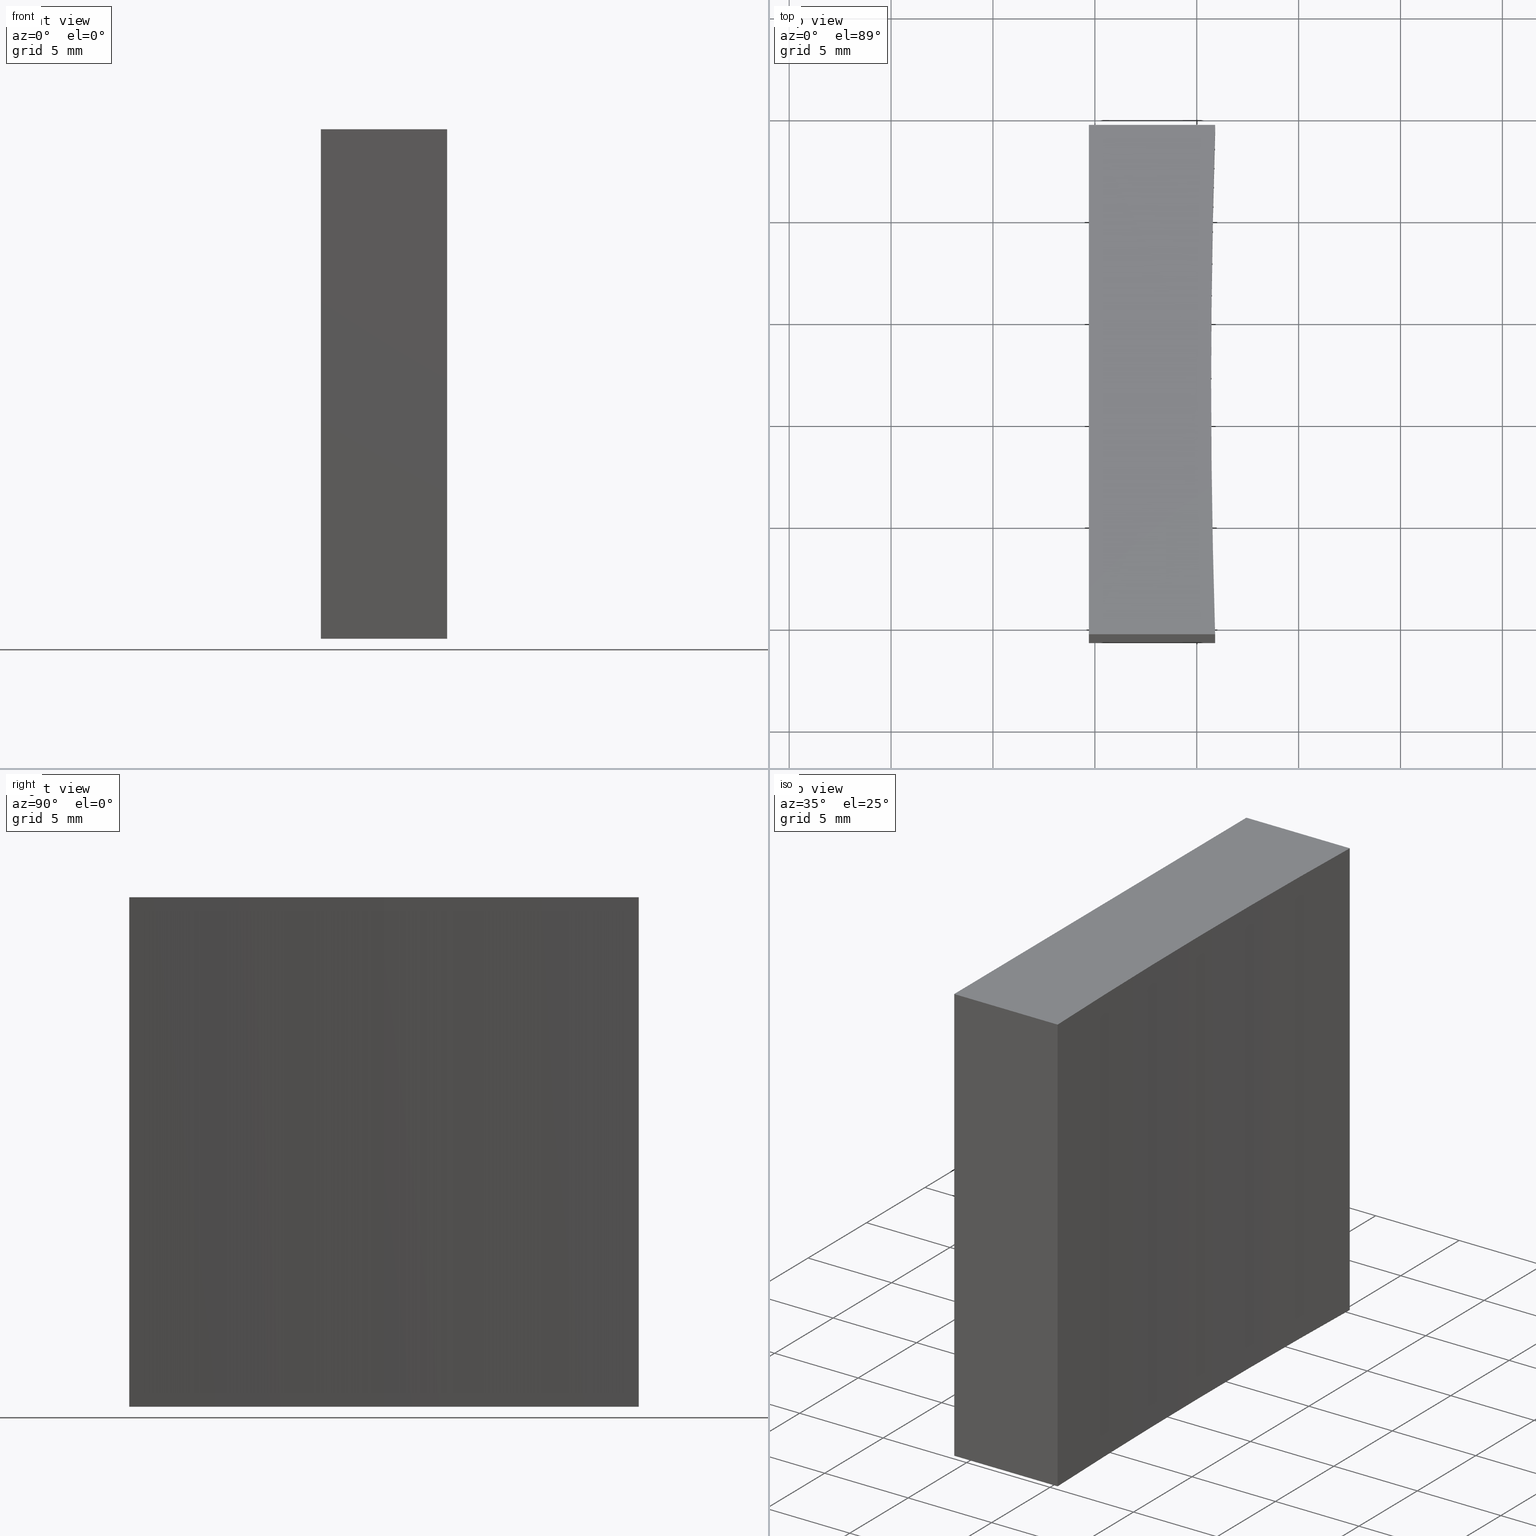
[diagram: canonical four-view strip — front | top / right | iso, engineering-drawing reading convention]
A machine part, canonical four-view strip (front | top / right | iso — engineering-drawing reading convention). The complete STEP part file that produces these views, byte-faithful:
ISO-10303-21;
HEADER;
FILE_DESCRIPTION (( 'STEP AP214' ),
    '1' );
FILE_NAME ('280020.STEP',
    '2019-08-08T03:07:42',
    ( '' ),
    ( '' ),
    'SwSTEP 2.0',
    'SolidWorks 2016',
    '' );
FILE_SCHEMA (( 'AUTOMOTIVE_DESIGN' ));
ENDSEC;

DATA;
#1 = LINE ( 'NONE', #146, #108 ) ;
#2 = PRODUCT_DEFINITION_FORMATION_WITH_SPECIFIED_SOURCE ( '�κ�', '', #199, .NOT_KNOWN. ) ;
#3 = ORIENTED_EDGE ( 'NONE', *, *, #42, .T. ) ;
#4 = EDGE_CURVE ( 'NONE', #57, #138, #98, .T. ) ;
#5 = DIRECTION ( 'NONE',  ( -0.0000000000000000000, -0.0000000000000000000, -1.000000000000000000 ) ) ;
#6 = EDGE_CURVE ( 'NONE', #134, #78, #185, .T. ) ;
#7 = PRESENTATION_LAYER_ASSIGNMENT (  '', '', ( #176 ) ) ;
#8 = DIRECTION ( 'NONE',  ( -0.0000000000000000000, -0.0000000000000000000, -1.000000000000000000 ) ) ;
#9 = CARTESIAN_POINT ( 'NONE',  ( 690.7071356183511200, 66.85792926776717600, 25.00000000000000000 ) ) ;
#10 = LINE ( 'NONE', #202, #200 ) ;
#11 = PLANE ( 'NONE',  #218 ) ;
#12 = ADVANCED_FACE ( 'NONE', ( #101 ), #189, .F. ) ;
#13 = CARTESIAN_POINT ( 'NONE',  ( 690.7071356183511200, 66.85792926776717600, 25.00000000000000000 ) ) ;
#14 = ORIENTED_EDGE ( 'NONE', *, *, #231, .T. ) ;
#15 = FILL_AREA_STYLE ('',( #236 ) ) ;
#16 = DIRECTION ( 'NONE',  ( -1.000000000000000000, 0.0000000000000000000, 0.0000000000000000000 ) ) ;
#17 = CARTESIAN_POINT ( 'NONE',  ( 290.9024958253641000, 54.35792926776729000, 25.00000000000000000 ) ) ;
#18 = CYLINDRICAL_SURFACE ( 'NONE', #95, 400.0000000000000600 ) ;
#19 = ORIENTED_EDGE ( 'NONE', *, *, #205, .T. ) ;
#20 = LINE ( 'NONE', #149, #22 ) ;
#21 = DIRECTION ( 'NONE',  ( -0.0000000000000000000, -0.0000000000000000000, -1.000000000000000000 ) ) ;
#22 = VECTOR ( 'NONE', #162, 1000.000000000000000 ) ;
#23 = CARTESIAN_POINT ( 'NONE',  ( 290.7071356183510000, 66.85792926776717600, 25.00000000000000000 ) ) ;
#24 = DIRECTION ( 'NONE',  ( 1.000000000000000000, 0.0000000000000000000, 0.0000000000000000000 ) ) ;
#25 = ORIENTED_EDGE ( 'NONE', *, *, #83, .T. ) ;
#26 = FACE_OUTER_BOUND ( 'NONE', #65, .T. ) ;
#27 = CARTESIAN_POINT ( 'NONE',  ( 284.7071356312820900, 79.35792926776707600, 25.00000000000000000 ) ) ;
#28 = UNCERTAINTY_MEASURE_WITH_UNIT (LENGTH_MEASURE( 1.000000000000000100E-005 ), #32, 'distance_accuracy_value', 'NONE');
#29 = DIRECTION ( 'NONE',  ( -0.0000000000000000000, -0.0000000000000000000, -1.000000000000000000 ) ) ;
#30 =( GEOMETRIC_REPRESENTATION_CONTEXT ( 3 ) GLOBAL_UNCERTAINTY_ASSIGNED_CONTEXT ( ( #215 ) ) GLOBAL_UNIT_ASSIGNED_CONTEXT ( ( #213, #150, #152 ) ) REPRESENTATION_CONTEXT ( 'NONE', 'WORKASPACE' ) );
#31 = ADVANCED_FACE ( 'NONE', ( #73 ), #80, .F. ) ;
#32 =( LENGTH_UNIT ( ) NAMED_UNIT ( * ) SI_UNIT ( .MILLI., .METRE. ) );
#33 = DIRECTION ( 'NONE',  ( 0.0000000000000000000, 0.0000000000000000000, 1.000000000000000000 ) ) ;
#34 = ORIENTED_EDGE ( 'NONE', *, *, #128, .T. ) ;
#35 = AXIS2_PLACEMENT_3D ( 'NONE', #102, #212, #159 ) ;
#36 = SURFACE_STYLE_USAGE ( .BOTH. , #124 ) ;
#37 = ADVANCED_BREP_SHAPE_REPRESENTATION ( '280020', ( #136, #204 ), #158 ) ;
#38 = ORIENTED_EDGE ( 'NONE', *, *, #194, .T. ) ;
#39 = ADVANCED_FACE ( 'NONE', ( #140 ), #208, .F. ) ;
#40 = EDGE_LOOP ( 'NONE', ( #188, #179, #121, #144 ) ) ;
#41 = VECTOR ( 'NONE', #224, 1000.000000000000000 ) ;
#42 = EDGE_CURVE ( 'NONE', #78, #209, #90, .T. ) ;
#43 = EDGE_CURVE ( 'NONE', #93, #134, #132, .T. ) ;
#44 = VECTOR ( 'NONE', #105, 1000.000000000000000 ) ;
#45 = MECHANICAL_DESIGN_GEOMETRIC_PRESENTATION_REPRESENTATION (  '', ( #176 ), #30 ) ;
#46 = CARTESIAN_POINT ( 'NONE',  ( 290.9024958253641000, 54.35792926776742500, 25.00000000000000000 ) ) ;
#47 = ORIENTED_EDGE ( 'NONE', *, *, #205, .F. ) ;
#48 = CARTESIAN_POINT ( 'NONE',  ( 284.7071356312820900, 54.35792926776707600, 25.00000000000000000 ) ) ;
#49 = CARTESIAN_POINT ( 'NONE',  ( 690.7071356183511200, 66.85792926776717600, 0.0000000000000000000 ) ) ;
#50 = CARTESIAN_POINT ( 'NONE',  ( 290.9024958253641000, 54.35792926776729000, 0.0000000000000000000 ) ) ;
#51 = ADVANCED_FACE ( 'NONE', ( #221 ), #11, .F. ) ;
#52 = CARTESIAN_POINT ( 'NONE',  ( 284.7071356312820900, 54.35792926776707600, 0.0000000000000000000 ) ) ;
#53 = PRESENTATION_LAYER_ASSIGNMENT (  '', '', ( #106 ) ) ;
#54 = APPLICATION_PROTOCOL_DEFINITION ( 'draft international standard', 'automotive_design', 1998, #147 ) ;
#55 = VECTOR ( 'NONE', #8, 1000.000000000000000 ) ;
#56 = APPLICATION_CONTEXT ( 'automotive_design' ) ;
#57 = VERTEX_POINT ( 'NONE', #27 ) ;
#58 = EDGE_CURVE ( 'NONE', #93, #184, #1, .T. ) ;
#59 = SURFACE_STYLE_FILL_AREA ( #104 ) ;
#60 = EDGE_CURVE ( 'NONE', #134, #130, #131, .T. ) ;
#61 = VECTOR ( 'NONE', #129, 1000.000000000000000 ) ;
#62 = CARTESIAN_POINT ( 'NONE',  ( 284.7071356312820900, 79.35792926776707600, 25.00000000000000000 ) ) ;
#63 = ORIENTED_EDGE ( 'NONE', *, *, #42, .F. ) ;
#64 = DIRECTION ( 'NONE',  ( 0.0000000000000000000, -0.0000000000000000000, -1.000000000000000000 ) ) ;
#65 = EDGE_LOOP ( 'NONE', ( #100, #19, #85, #122, #38 ) ) ;
#66 = CARTESIAN_POINT ( 'NONE',  ( 690.7071356183511200, 66.85792926776717600, 0.0000000000000000000 ) ) ;
#67 = AXIS2_PLACEMENT_3D ( 'NONE', #193, #123, #119 ) ;
#68 = CARTESIAN_POINT ( 'NONE',  ( 290.9024958253641000, 79.35792926776707600, 25.00000000000000000 ) ) ;
#69 = EDGE_CURVE ( 'NONE', #167, #184, #203, .T. ) ;
#70 = PRODUCT_CONTEXT ( 'NONE', #147, 'mechanical' ) ;
#71 = SURFACE_STYLE_FILL_AREA ( #15 ) ;
#72 = EDGE_LOOP ( 'NONE', ( #174, #103, #3, #239 ) ) ;
#73 = FACE_OUTER_BOUND ( 'NONE', #72, .T. ) ;
#74 = ORIENTED_EDGE ( 'NONE', *, *, #4, .F. ) ;
#75 = LINE ( 'NONE', #48, #44 ) ;
#76 = FACE_OUTER_BOUND ( 'NONE', #168, .T. ) ;
#77 = EDGE_CURVE ( 'NONE', #209, #138, #111, .T. ) ;
#78 = VERTEX_POINT ( 'NONE', #161 ) ;
#79 = ORIENTED_EDGE ( 'NONE', *, *, #172, .F. ) ;
#80 = CYLINDRICAL_SURFACE ( 'NONE', #190, 400.0000000000000600 ) ;
#81 = AXIS2_PLACEMENT_3D ( 'NONE', #17, #237, #127 ) ;
#82 = DIRECTION ( 'NONE',  ( 1.000000000000000000, 0.0000000000000000000, 0.0000000000000000000 ) ) ;
#83 = EDGE_CURVE ( 'NONE', #184, #78, #156, .T. ) ;
#84 = CARTESIAN_POINT ( 'NONE',  ( 290.7071356183510000, 66.85792926776717600, 25.00000000000000000 ) ) ;
#85 = ORIENTED_EDGE ( 'NONE', *, *, #43, .T. ) ;
#86 = PLANE ( 'NONE',  #67 ) ;
#87 = ADVANCED_FACE ( 'NONE', ( #26 ), #86, .T. ) ;
#88 = PLANE ( 'NONE',  #81 ) ;
#89 = VERTEX_POINT ( 'NONE', #229 ) ;
#90 = CIRCLE ( 'NONE', #226, 400.0000000000000000 ) ;
#91 = CARTESIAN_POINT ( 'NONE',  ( 284.7071356312820900, 79.35792926776707600, 25.00000000000000000 ) ) ;
#92 = DIRECTION ( 'NONE',  ( -0.0000000000000000000, -0.0000000000000000000, -1.000000000000000000 ) ) ;
#93 = VERTEX_POINT ( 'NONE', #46 ) ;
#94 = ORIENTED_EDGE ( 'NONE', *, *, #69, .F. ) ;
#95 = AXIS2_PLACEMENT_3D ( 'NONE', #13, #92, #16 ) ;
#96 = PRESENTATION_STYLE_ASSIGNMENT (( #36 ) ) ;
#97 = EDGE_CURVE ( 'NONE', #57, #89, #75, .T. ) ;
#98 = LINE ( 'NONE', #62, #41 ) ;
#99 = MECHANICAL_DESIGN_GEOMETRIC_PRESENTATION_REPRESENTATION (  '', ( #106 ), #133 ) ;
#100 = ORIENTED_EDGE ( 'NONE', *, *, #97, .T. ) ;
#101 = FACE_OUTER_BOUND ( 'NONE', #40, .T. ) ;
#102 = CARTESIAN_POINT ( 'NONE',  ( 690.7071356183511200, 66.85792926776717600, 0.0000000000000000000 ) ) ;
#103 = ORIENTED_EDGE ( 'NONE', *, *, #6, .T. ) ;
#104 = FILL_AREA_STYLE ('',( #211 ) ) ;
#105 = DIRECTION ( 'NONE',  ( -0.0000000000000000000, -1.000000000000000000, -0.0000000000000000000 ) ) ;
#106 = STYLED_ITEM ( 'NONE', ( #157 ), #136 ) ;
#107 = DIRECTION ( 'NONE',  ( 1.000000000000000000, 0.0000000000000000000, 0.0000000000000000000 ) ) ;
#108 = VECTOR ( 'NONE', #195, 1000.000000000000000 ) ;
#109 =( NAMED_UNIT ( * ) SI_UNIT ( $, .STERADIAN. ) SOLID_ANGLE_UNIT ( ) );
#110 = CARTESIAN_POINT ( 'NONE',  ( 290.9024958253641000, 79.35792926776707600, 0.0000000000000000000 ) ) ;
#111 = LINE ( 'NONE', #160, #126 ) ;
#112 = LINE ( 'NONE', #180, #61 ) ;
#113 = ORIENTED_EDGE ( 'NONE', *, *, #43, .F. ) ;
#114 = DIRECTION ( 'NONE',  ( 0.0000000000000000000, 0.0000000000000000000, -1.000000000000000000 ) ) ;
#115 = CARTESIAN_POINT ( 'NONE',  ( 290.9024958253641000, 79.35792926776707600, 25.00000000000000000 ) ) ;
#116 = ORIENTED_EDGE ( 'NONE', *, *, #83, .F. ) ;
#117 = AXIS2_PLACEMENT_3D ( 'NONE', #9, #196, #141 ) ;
#118 = DIRECTION ( 'NONE',  ( -0.0000000000000000000, -0.0000000000000000000, -1.000000000000000000 ) ) ;
#119 = DIRECTION ( 'NONE',  ( 1.000000000000000000, 0.0000000000000000000, -0.0000000000000000000 ) ) ;
#120 = SURFACE_STYLE_USAGE ( .BOTH. , #230 ) ;
#121 = ORIENTED_EDGE ( 'NONE', *, *, #97, .F. ) ;
#122 = ORIENTED_EDGE ( 'NONE', *, *, #60, .T. ) ;
#123 = DIRECTION ( 'NONE',  ( 0.0000000000000000000, 0.0000000000000000000, 1.000000000000000000 ) ) ;
#124 = SURFACE_SIDE_STYLE ('',( #71 ) ) ;
#125 = EDGE_LOOP ( 'NONE', ( #94, #79, #143, #63, #116 ) ) ;
#126 = VECTOR ( 'NONE', #228, 1000.000000000000000 ) ;
#127 = DIRECTION ( 'NONE',  ( -1.000000000000000000, -3.360043816597844900E-014, 0.0000000000000000000 ) ) ;
#128 = EDGE_CURVE ( 'NONE', #130, #209, #235, .T. ) ;
#129 = DIRECTION ( 'NONE',  ( -0.0000000000000000000, -1.000000000000000000, -0.0000000000000000000 ) ) ;
#130 = VERTEX_POINT ( 'NONE', #115 ) ;
#131 = CIRCLE ( 'NONE', #117, 400.0000000000000000 ) ;
#132 = CIRCLE ( 'NONE', #164, 400.0000000000000000 ) ;
#133 =( GEOMETRIC_REPRESENTATION_CONTEXT ( 3 ) GLOBAL_UNCERTAINTY_ASSIGNED_CONTEXT ( ( #28 ) ) GLOBAL_UNIT_ASSIGNED_CONTEXT ( ( #32, #175, #181 ) ) REPRESENTATION_CONTEXT ( 'NONE', 'WORKASPACE' ) );
#134 = VERTEX_POINT ( 'NONE', #84 ) ;
#135 = VECTOR ( 'NONE', #5, 1000.000000000000000 ) ;
#136 = MANIFOLD_SOLID_BREP ( '͹̨-����1', #187 ) ;
#137 = CARTESIAN_POINT ( 'NONE',  ( 690.7071356183511200, 66.85792926776717600, 25.00000000000000000 ) ) ;
#138 = VERTEX_POINT ( 'NONE', #227 ) ;
#139 = PRODUCT_RELATED_PRODUCT_CATEGORY ( 'part', '', ( #199 ) ) ;
#140 = FACE_OUTER_BOUND ( 'NONE', #223, .T. ) ;
#141 = DIRECTION ( 'NONE',  ( 1.000000000000000000, 0.0000000000000000000, 0.0000000000000000000 ) ) ;
#142 = DIRECTION ( 'NONE',  ( 1.000000000000000000, 0.0000000000000000000, 0.0000000000000000000 ) ) ;
#143 = ORIENTED_EDGE ( 'NONE', *, *, #77, .F. ) ;
#144 = ORIENTED_EDGE ( 'NONE', *, *, #4, .T. ) ;
#145 = DIRECTION ( 'NONE',  ( 1.000000000000000000, 3.360043816597844900E-014, -0.0000000000000000000 ) ) ;
#146 = CARTESIAN_POINT ( 'NONE',  ( 290.9024958253641000, 54.35792926776742500, 25.00000000000000000 ) ) ;
#147 = APPLICATION_CONTEXT ( 'automotive_design' ) ;
#148 = ADVANCED_FACE ( 'NONE', ( #166 ), #18, .F. ) ;
#149 = CARTESIAN_POINT ( 'NONE',  ( 284.7071356312820900, 54.35792926776707600, 25.00000000000000000 ) ) ;
#150 =( NAMED_UNIT ( * ) PLANE_ANGLE_UNIT ( ) SI_UNIT ( $, .RADIAN. ) );
#151 =( LENGTH_UNIT ( ) NAMED_UNIT ( * ) SI_UNIT ( .MILLI., .METRE. ) );
#152 =( NAMED_UNIT ( * ) SI_UNIT ( $, .STERADIAN. ) SOLID_ANGLE_UNIT ( ) );
#153 = ORIENTED_EDGE ( 'NONE', *, *, #58, .F. ) ;
#154 = DIRECTION ( 'NONE',  ( -1.000000000000000000, 0.0000000000000000000, 0.0000000000000000000 ) ) ;
#155 = AXIS2_PLACEMENT_3D ( 'NONE', #169, #210, #64 ) ;
#156 = CIRCLE ( 'NONE', #35, 400.0000000000000000 ) ;
#157 = PRESENTATION_STYLE_ASSIGNMENT (( #120 ) ) ;
#158 =( GEOMETRIC_REPRESENTATION_CONTEXT ( 3 ) GLOBAL_UNCERTAINTY_ASSIGNED_CONTEXT ( ( #234 ) ) GLOBAL_UNIT_ASSIGNED_CONTEXT ( ( #151, #214, #109 ) ) REPRESENTATION_CONTEXT ( 'NONE', 'WORKASPACE' ) );
#159 = DIRECTION ( 'NONE',  ( 1.000000000000000000, 0.0000000000000000000, 0.0000000000000000000 ) ) ;
#160 = CARTESIAN_POINT ( 'NONE',  ( 284.7071356312820900, 79.35792926776707600, 0.0000000000000000000 ) ) ;
#161 = CARTESIAN_POINT ( 'NONE',  ( 290.7071356183510000, 66.85792926776717600, 0.0000000000000000000 ) ) ;
#162 = DIRECTION ( 'NONE',  ( -0.0000000000000000000, -0.0000000000000000000, -1.000000000000000000 ) ) ;
#163 = ORIENTED_EDGE ( 'NONE', *, *, #77, .T. ) ;
#164 = AXIS2_PLACEMENT_3D ( 'NONE', #191, #118, #82 ) ;
#165 = PRODUCT_DEFINITION_CONTEXT ( 'detailed design', #56, 'design' ) ;
#166 = FACE_OUTER_BOUND ( 'NONE', #201, .T. ) ;
#167 = VERTEX_POINT ( 'NONE', #52 ) ;
#168 = EDGE_LOOP ( 'NONE', ( #170, #153, #47, #14 ) ) ;
#169 = CARTESIAN_POINT ( 'NONE',  ( 284.7071356312820900, 79.35792926776707600, 25.00000000000000000 ) ) ;
#170 = ORIENTED_EDGE ( 'NONE', *, *, #69, .T. ) ;
#171 = DIRECTION ( 'NONE',  ( 1.000000000000000000, 0.0000000000000000000, -0.0000000000000000000 ) ) ;
#172 = EDGE_CURVE ( 'NONE', #138, #167, #112, .T. ) ;
#173 = DIRECTION ( 'NONE',  ( 0.0000000000000000000, 0.0000000000000000000, 1.000000000000000000 ) ) ;
#174 = ORIENTED_EDGE ( 'NONE', *, *, #60, .F. ) ;
#175 =( NAMED_UNIT ( * ) PLANE_ANGLE_UNIT ( ) SI_UNIT ( $, .RADIAN. ) );
#176 = STYLED_ITEM ( 'NONE', ( #96 ), #37 ) ;
#177 = CARTESIAN_POINT ( 'NONE',  ( 290.9024958253641000, 54.35792926776742500, 0.0000000000000000000 ) ) ;
#178 = CARTESIAN_POINT ( 'NONE',  ( 0.0000000000000000000, 0.0000000000000000000, 0.0000000000000000000 ) ) ;
#179 = ORIENTED_EDGE ( 'NONE', *, *, #231, .F. ) ;
#180 = CARTESIAN_POINT ( 'NONE',  ( 284.7071356312820900, 66.85792926776707600, 0.0000000000000000000 ) ) ;
#181 =( NAMED_UNIT ( * ) SI_UNIT ( $, .STERADIAN. ) SOLID_ANGLE_UNIT ( ) );
#182 = PRODUCT_DEFINITION_SHAPE ( 'NONE', 'NONE',  #238 ) ;
#183 = DIRECTION ( 'NONE',  ( -1.000000000000000000, -0.0000000000000000000, -0.0000000000000000000 ) ) ;
#184 = VERTEX_POINT ( 'NONE', #177 ) ;
#185 = LINE ( 'NONE', #23, #135 ) ;
#186 = ORIENTED_EDGE ( 'NONE', *, *, #194, .F. ) ;
#187 = CLOSED_SHELL ( 'NONE', ( #31, #232, #148, #39, #12, #87, #51 ) ) ;
#188 = ORIENTED_EDGE ( 'NONE', *, *, #172, .T. ) ;
#189 = PLANE ( 'NONE',  #216 ) ;
#190 = AXIS2_PLACEMENT_3D ( 'NONE', #137, #21, #154 ) ;
#191 = CARTESIAN_POINT ( 'NONE',  ( 690.7071356183511200, 66.85792926776717600, 25.00000000000000000 ) ) ;
#192 = LINE ( 'NONE', #91, #220 ) ;
#193 = CARTESIAN_POINT ( 'NONE',  ( 690.7071356183511200, 66.85792926776717600, 25.00000000000000000 ) ) ;
#194 = EDGE_CURVE ( 'NONE', #130, #57, #192, .T. ) ;
#195 = DIRECTION ( 'NONE',  ( -0.0000000000000000000, -0.0000000000000000000, -1.000000000000000000 ) ) ;
#196 = DIRECTION ( 'NONE',  ( -0.0000000000000000000, -0.0000000000000000000, -1.000000000000000000 ) ) ;
#197 = DIRECTION ( 'NONE',  ( 1.000000000000000000, 3.360043816597844900E-014, -0.0000000000000000000 ) ) ;
#198 = SHAPE_DEFINITION_REPRESENTATION ( #182, #37 ) ;
#199 = PRODUCT ( '280020', '280020', '', ( #70 ) ) ;
#200 = VECTOR ( 'NONE', #197, 1000.000000000000000 ) ;
#201 = EDGE_LOOP ( 'NONE', ( #217, #113, #219, #25 ) ) ;
#202 = CARTESIAN_POINT ( 'NONE',  ( 290.9024958253641000, 54.35792926776729000, 25.00000000000000000 ) ) ;
#203 = LINE ( 'NONE', #50, #225 ) ;
#204 = AXIS2_PLACEMENT_3D ( 'NONE', #178, #33, #107 ) ;
#205 = EDGE_CURVE ( 'NONE', #89, #93, #10, .T. ) ;
#206 = COLOUR_RGB ( '',1.000000000000000000, 1.000000000000000000, 1.000000000000000000 ) ;
#207 = COLOUR_RGB ( '',1.000000000000000000, 1.000000000000000000, 1.000000000000000000 ) ;
#208 = PLANE ( 'NONE',  #155 ) ;
#209 = VERTEX_POINT ( 'NONE', #110 ) ;
#210 = DIRECTION ( 'NONE',  ( 0.0000000000000000000, -1.000000000000000000, 0.0000000000000000000 ) ) ;
#211 = FILL_AREA_STYLE_COLOUR ( '', #207 ) ;
#212 = DIRECTION ( 'NONE',  ( -0.0000000000000000000, -0.0000000000000000000, -1.000000000000000000 ) ) ;
#213 =( LENGTH_UNIT ( ) NAMED_UNIT ( * ) SI_UNIT ( .MILLI., .METRE. ) );
#214 =( NAMED_UNIT ( * ) PLANE_ANGLE_UNIT ( ) SI_UNIT ( $, .RADIAN. ) );
#215 = UNCERTAINTY_MEASURE_WITH_UNIT (LENGTH_MEASURE( 1.000000000000000100E-005 ), #213, 'distance_accuracy_value', 'NONE');
#216 = AXIS2_PLACEMENT_3D ( 'NONE', #222, #24, #114 ) ;
#217 = ORIENTED_EDGE ( 'NONE', *, *, #6, .F. ) ;
#218 = AXIS2_PLACEMENT_3D ( 'NONE', #49, #173, #171 ) ;
#219 = ORIENTED_EDGE ( 'NONE', *, *, #58, .T. ) ;
#220 = VECTOR ( 'NONE', #183, 1000.000000000000000 ) ;
#221 = FACE_OUTER_BOUND ( 'NONE', #125, .T. ) ;
#222 = CARTESIAN_POINT ( 'NONE',  ( 284.7071356312820900, 66.85792926776707600, 25.00000000000000000 ) ) ;
#223 = EDGE_LOOP ( 'NONE', ( #163, #74, #186, #34 ) ) ;
#224 = DIRECTION ( 'NONE',  ( -0.0000000000000000000, -0.0000000000000000000, -1.000000000000000000 ) ) ;
#225 = VECTOR ( 'NONE', #145, 1000.000000000000000 ) ;
#226 = AXIS2_PLACEMENT_3D ( 'NONE', #66, #29, #142 ) ;
#227 = CARTESIAN_POINT ( 'NONE',  ( 284.7071356312820900, 79.35792926776707600, 0.0000000000000000000 ) ) ;
#228 = DIRECTION ( 'NONE',  ( -1.000000000000000000, -0.0000000000000000000, -0.0000000000000000000 ) ) ;
#229 = CARTESIAN_POINT ( 'NONE',  ( 284.7071356312820900, 54.35792926776707600, 25.00000000000000000 ) ) ;
#230 = SURFACE_SIDE_STYLE ('',( #59 ) ) ;
#231 = EDGE_CURVE ( 'NONE', #89, #167, #20, .T. ) ;
#232 = ADVANCED_FACE ( 'NONE', ( #76 ), #88, .F. ) ;
#233 = APPLICATION_PROTOCOL_DEFINITION ( 'draft international standard', 'automotive_design', 1998, #56 ) ;
#234 = UNCERTAINTY_MEASURE_WITH_UNIT (LENGTH_MEASURE( 1.000000000000000100E-005 ), #151, 'distance_accuracy_value', 'NONE');
#235 = LINE ( 'NONE', #68, #55 ) ;
#236 = FILL_AREA_STYLE_COLOUR ( '', #206 ) ;
#237 = DIRECTION ( 'NONE',  ( -3.360043816597844900E-014, 1.000000000000000000, 0.0000000000000000000 ) ) ;
#238 = PRODUCT_DEFINITION ( 'δ֪', '', #2, #165 ) ;
#239 = ORIENTED_EDGE ( 'NONE', *, *, #128, .F. ) ;
ENDSEC;
END-ISO-10303-21;
